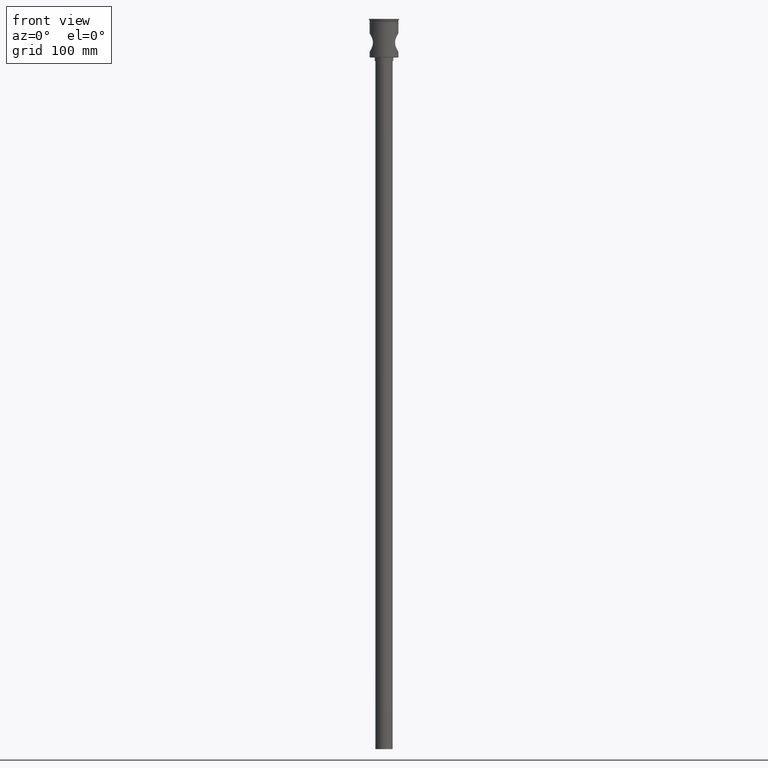
[diagram: clean part render]
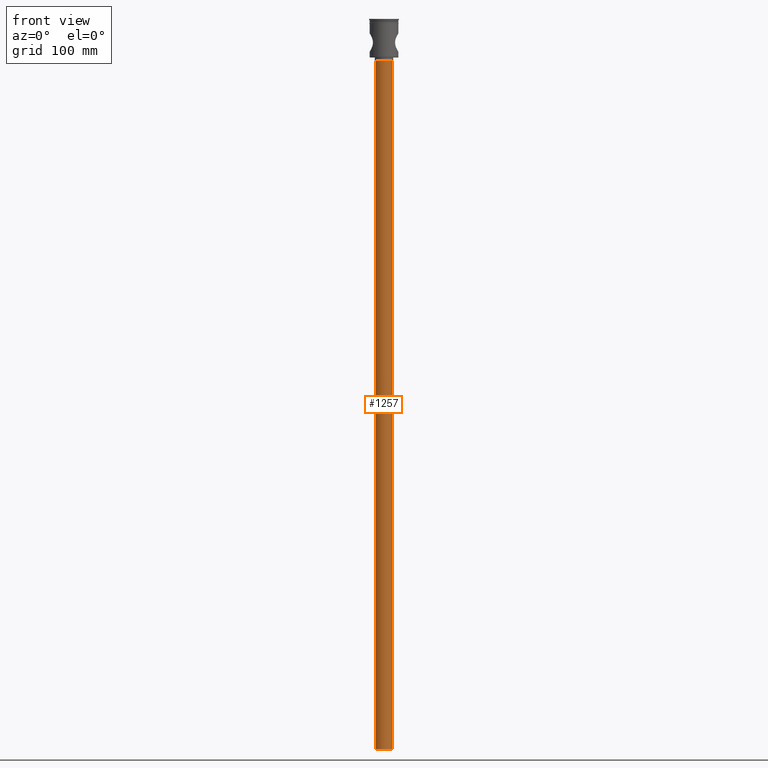
[diagram: same view with one face highlighted and labeled with its STEP entity id]
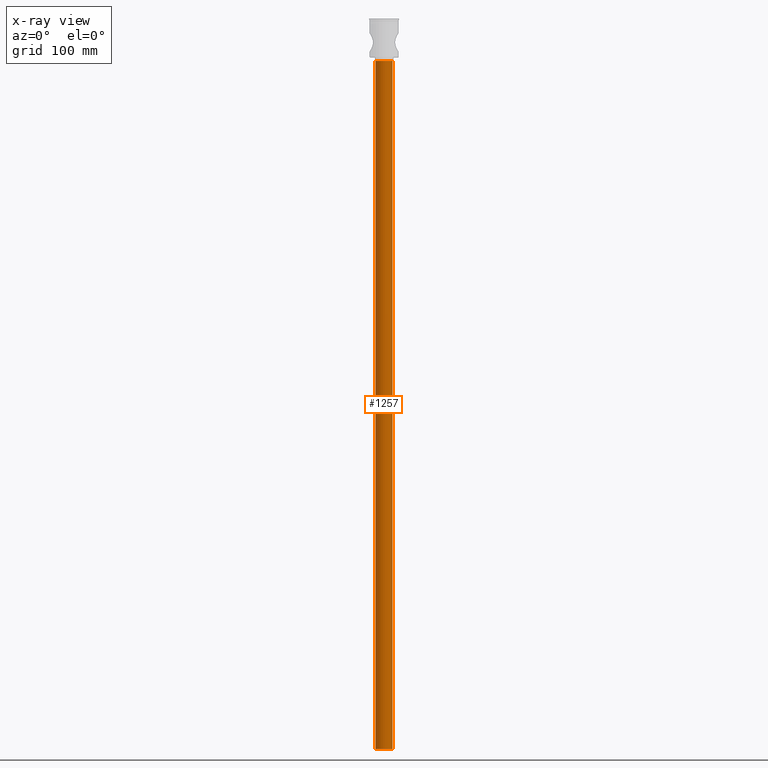
[diagram: x-ray of the same camera — body ghosted, the highlighted face saturated]
A machine part, front view. The second image highlights one B-rep face of the part: STEP entity #1257.
The next image is the same camera in x-ray: the body ghosted, the highlighted face saturated — about 0% of this face is hidden behind the body in this view.
In plain terms, the highlighted cylindrical surface (edge-blend (fillet) strip) has radius 7.5 mm, axis along (-0, -0, 1).
Its self-contained STEP definition (entity closure, byte-faithful):
#96 = ORIENTED_EDGE ( 'NONE', *, *, #1319, .T. ) ;
#115 = VERTEX_POINT ( 'NONE', #159 ) ;
#141 = ORIENTED_EDGE ( 'NONE', *, *, #1134, .F. ) ;
#159 = CARTESIAN_POINT ( 'NONE',  ( 7.500000000000000000, 0.000000000000000000, -36.50000000000000711 ) ) ;
#171 = EDGE_LOOP ( 'NONE', ( #141, #797, #1203, #96 ) ) ;
#212 = DIRECTION ( 'NONE',  ( -1.000000000000000000, 0.000000000000000000, 0.000000000000000000 ) ) ;
#303 = DIRECTION ( 'NONE',  ( -0.000000000000000000, -0.000000000000000000, 1.000000000000000000 ) ) ;
#305 = EDGE_CURVE ( 'NONE', #660, #389, #1059, .T. ) ;
#372 = DIRECTION ( 'NONE',  ( -0.000000000000000000, -0.000000000000000000, 1.000000000000000000 ) ) ;
#389 = VERTEX_POINT ( 'NONE', #761 ) ;
#467 = AXIS2_PLACEMENT_3D ( 'NONE', #1277, #678, #566 ) ;
#515 = AXIS2_PLACEMENT_3D ( 'NONE', #1524, #1312, #212 ) ;
#543 = CIRCLE ( 'NONE', #515, 7.500000000000000000 ) ;
#566 = DIRECTION ( 'NONE',  ( -1.000000000000000000, 0.000000000000000000, 0.000000000000000000 ) ) ;
#571 = VECTOR ( 'NONE', #372, 1000.000000000000000 ) ;
#626 = VERTEX_POINT ( 'NONE', #1440 ) ;
#660 = VERTEX_POINT ( 'NONE', #946 ) ;
#678 = DIRECTION ( 'NONE',  ( 0.000000000000000000, 0.000000000000000000, -1.000000000000000000 ) ) ;
#679 = EDGE_CURVE ( 'NONE', #660, #115, #951, .T. ) ;
#761 = CARTESIAN_POINT ( 'NONE',  ( -7.500000000000000000, 9.184850993605147944E-16, -633.5000000000000000 ) ) ;
#774 = FACE_OUTER_BOUND ( 'NONE', #171, .T. ) ;
#782 = DIRECTION ( 'NONE',  ( 1.000000000000000000, 0.000000000000000000, 0.000000000000000000 ) ) ;
#797 = ORIENTED_EDGE ( 'NONE', *, *, #305, .F. ) ;
#920 = CYLINDRICAL_SURFACE ( 'NONE', #1459, 7.500000000000000000 ) ;
#946 = CARTESIAN_POINT ( 'NONE',  ( 7.500000000000000000, 0.000000000000000000, -633.5000000000000000 ) ) ;
#951 = LINE ( 'NONE', #1420, #964 ) ;
#964 = VECTOR ( 'NONE', #1408, 1000.000000000000000 ) ;
#1059 = CIRCLE ( 'NONE', #467, 7.500000000000000000 ) ;
#1134 = EDGE_CURVE ( 'NONE', #389, #626, #1418, .T. ) ;
#1148 = CARTESIAN_POINT ( 'NONE',  ( 0.000000000000000000, 0.000000000000000000, -633.5000000000000000 ) ) ;
#1203 = ORIENTED_EDGE ( 'NONE', *, *, #679, .T. ) ;
#1257 = ADVANCED_FACE ( 'NONE', ( #774 ), #920, .T. ) ;
#1277 = CARTESIAN_POINT ( 'NONE',  ( 0.000000000000000000, 0.000000000000000000, -633.5000000000000000 ) ) ;
#1312 = DIRECTION ( 'NONE',  ( 0.000000000000000000, 0.000000000000000000, -1.000000000000000000 ) ) ;
#1319 = EDGE_CURVE ( 'NONE', #115, #626, #543, .T. ) ;
#1408 = DIRECTION ( 'NONE',  ( -0.000000000000000000, -0.000000000000000000, 1.000000000000000000 ) ) ;
#1418 = LINE ( 'NONE', #1438, #571 ) ;
#1420 = CARTESIAN_POINT ( 'NONE',  ( 7.500000000000000000, 0.000000000000000000, -633.5000000000000000 ) ) ;
#1438 = CARTESIAN_POINT ( 'NONE',  ( -7.500000000000000000, 9.184850993605147944E-16, -633.5000000000000000 ) ) ;
#1440 = CARTESIAN_POINT ( 'NONE',  ( -7.500000000000000000, 9.184850993605147944E-16, -36.50000000000000711 ) ) ;
#1459 = AXIS2_PLACEMENT_3D ( 'NONE', #1148, #303, #782 ) ;
#1524 = CARTESIAN_POINT ( 'NONE',  ( 0.000000000000000000, 0.000000000000000000, -36.50000000000000711 ) ) ;